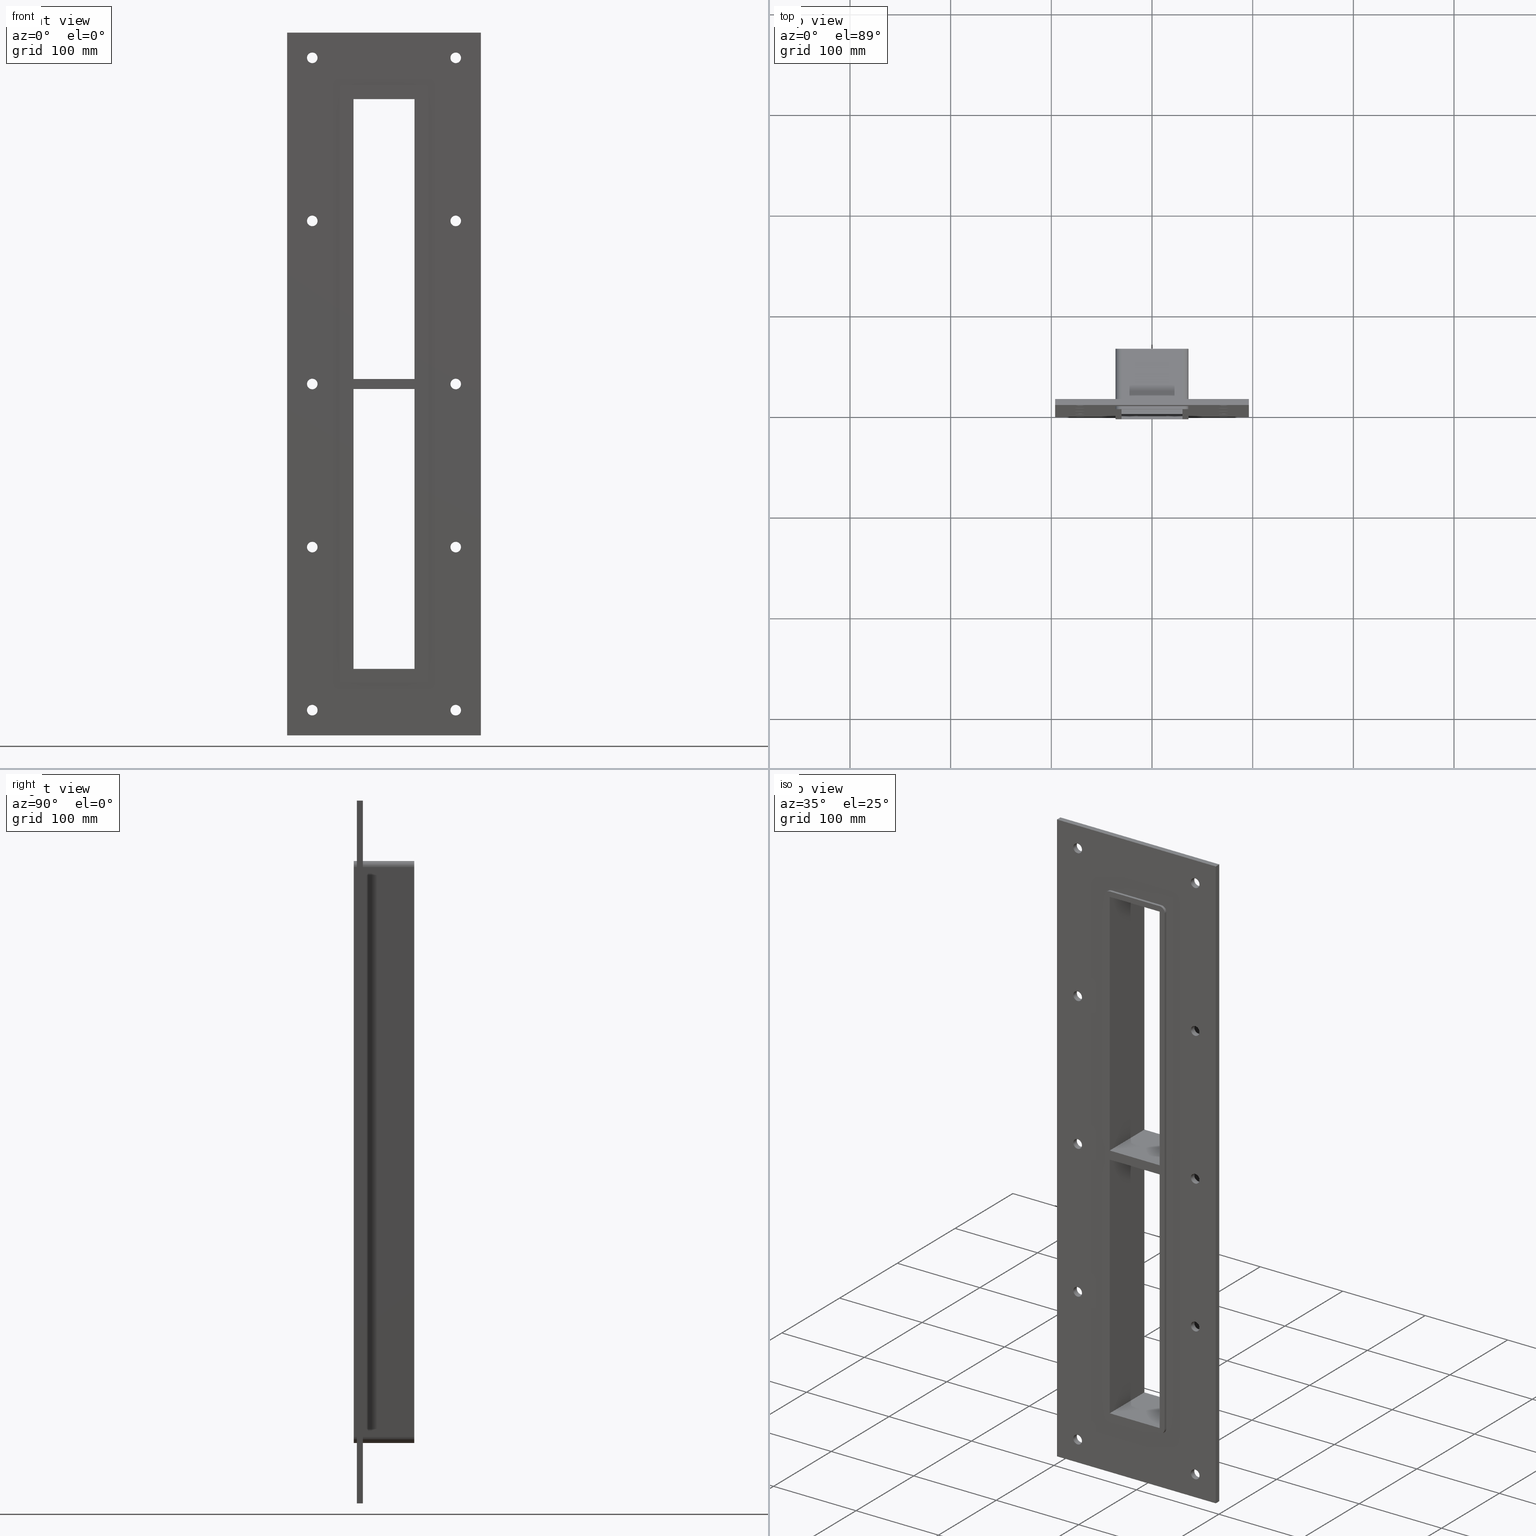
[diagram: canonical four-view strip — front | top / right | iso, engineering-drawing reading convention]
A machine part, canonical four-view strip (front | top / right | iso — engineering-drawing reading convention). The complete STEP part file that produces these views, byte-faithful:
ISO-10303-21;
HEADER;
/****************************************************************
 * Generated by software with PDElib inside                    *
 * PDElib Version v51a, created Wed 11/30/2011                  *
 * ITI Transcendata (http://www.transcendata.com/)              *
 ****************************************************************/
FILE_DESCRIPTION((''),'2;1');
FILE_NAME('L:\\roxtec-se\\Projects\\Ongoing_Projects\\12403 Transit Designer\\Product-data\\Product Data\\Reviwed & Approved\\Review\\GH\\STEP\\GH7+7X1.stp','2015-02-20T11:39:21',('se-emikul'),(''),'Autodesk Inventor 2013','Autodesk Inventor 2013','');
FILE_SCHEMA(('AUTOMOTIVE_DESIGN { 1 0 10303 214 1 1 1 1 }'));
ENDSEC;
DATA;
#5=APPLICATION_CONTEXT('automotive design');
#6=APPLICATION_PROTOCOL_DEFINITION('International Standard','automotive_design',2001,#5);
#7=PRODUCT_CONTEXT('',#5,'mechanical');
#8=PRODUCT('GH7+7X1','GH7+7X1',$,(#7));
#9=PRODUCT_RELATED_PRODUCT_CATEGORY('part',$,(#8));
#10=PRODUCT_DEFINITION_FORMATION('',$,#8);
#11=PRODUCT_DEFINITION_CONTEXT('part definition',#5,'design');
#12=PRODUCT_DEFINITION('',$,#10,#11);
#18=(NAMED_UNIT(*)PLANE_ANGLE_UNIT()SI_UNIT($,.RADIAN.));
#19=DIMENSIONAL_EXPONENTS(0.0,0.0,0.0,0.0,0.0,0.0,0.0);
#20=PLANE_ANGLE_MEASURE_WITH_UNIT(PLANE_ANGLE_MEASURE(0.0174532925),#18);
#24=(CONVERSION_BASED_UNIT('DEGREE',#20)NAMED_UNIT(#19)PLANE_ANGLE_UNIT());
#28=(NAMED_UNIT(*)SI_UNIT($,.STERADIAN.)SOLID_ANGLE_UNIT());
#32=(LENGTH_UNIT()NAMED_UNIT(*)SI_UNIT(.MILLI.,.METRE.));
#34=UNCERTAINTY_MEASURE_WITH_UNIT(LENGTH_MEASURE(0.01),#32,'DISTANCE_ACCURACY_VALUE','');
#36=(GEOMETRIC_REPRESENTATION_CONTEXT(3)GLOBAL_UNCERTAINTY_ASSIGNED_CONTEXT((#34))GLOBAL_UNIT_ASSIGNED_CONTEXT((#24,#28,#32))REPRESENTATION_CONTEXT('None','None'));
#37=AXIS2_PLACEMENT_3D('',#38,#39,#40);
#38=CARTESIAN_POINT('',(0.0,0.0,0.0));
#39=DIRECTION('',(0.0,0.0,1.0));
#40=DIRECTION('',(1.0,0.0,0.0));
#41=SHAPE_REPRESENTATION('',(#37),#36);
#42=PRODUCT_DEFINITION_SHAPE('','',#12);
#43=SHAPE_DEFINITION_REPRESENTATION(#42,#41);
#49=(NAMED_UNIT(*)PLANE_ANGLE_UNIT()SI_UNIT($,.RADIAN.));
#50=DIMENSIONAL_EXPONENTS(0.0,0.0,0.0,0.0,0.0,0.0,0.0);
#51=PLANE_ANGLE_MEASURE_WITH_UNIT(PLANE_ANGLE_MEASURE(0.0174532925),#49);
#55=(CONVERSION_BASED_UNIT('DEGREE',#51)NAMED_UNIT(#50)PLANE_ANGLE_UNIT());
#59=(NAMED_UNIT(*)SI_UNIT($,.STERADIAN.)SOLID_ANGLE_UNIT());
#63=(LENGTH_UNIT()NAMED_UNIT(*)SI_UNIT(.MILLI.,.METRE.));
#65=UNCERTAINTY_MEASURE_WITH_UNIT(LENGTH_MEASURE(0.000001),#63,'DISTANCE_ACCURACY_VALUE','');
#67=(GEOMETRIC_REPRESENTATION_CONTEXT(3)GLOBAL_UNCERTAINTY_ASSIGNED_CONTEXT((#65))GLOBAL_UNIT_ASSIGNED_CONTEXT((#55,#59,#63))REPRESENTATION_CONTEXT('','3D'));
#68=CARTESIAN_POINT('',(-71.250000000000114,726.53991631568306,-323.99999999999989));
#69=DIRECTION('',(0.0,-1.0,0.0));
#70=DIRECTION('',(1.0,0.0,0.0));
#71=AXIS2_PLACEMENT_3D('',#68,#69,#70);
#72=CYLINDRICAL_SURFACE('',#71,5.25);
#73=CARTESIAN_POINT('',(-76.500000000000114,5.999999999999943,-323.99999999999989));
#74=VERTEX_POINT('',#73);
#75=CARTESIAN_POINT('',(-71.250000000000114,5.999999999999943,-323.99999999999989));
#76=DIRECTION('',(0.0,-1.0,0.0));
#77=DIRECTION('',(1.0,0.0,0.0));
#78=AXIS2_PLACEMENT_3D('',#75,#76,#77);
#79=CIRCLE('',#78,5.25);
#80=EDGE_CURVE('',#74,#74,#79,.T.);
#81=ORIENTED_EDGE('',*,*,#80,.F.);
#82=EDGE_LOOP('',(#81));
#83=FACE_OUTER_BOUND('',#82,.T.);
#84=CARTESIAN_POINT('',(-66.000000000000099,0.0,-323.99999999999989));
#85=VERTEX_POINT('',#84);
#86=CARTESIAN_POINT('',(-71.250000000000114,0.0,-323.99999999999989));
#87=DIRECTION('',(0.0,1.0,0.0));
#88=DIRECTION('',(1.0,0.0,0.0));
#89=AXIS2_PLACEMENT_3D('',#86,#87,#88);
#90=CIRCLE('',#89,5.25);
#91=EDGE_CURVE('',#85,#85,#90,.T.);
#92=ORIENTED_EDGE('',*,*,#91,.F.);
#93=EDGE_LOOP('',(#92));
#94=FACE_BOUND('',#93,.T.);
#95=ADVANCED_FACE('',(#83,#94),#72,.F.);
#96=CARTESIAN_POINT('',(71.249999999999886,726.53991631568306,-161.99999999999986));
#97=DIRECTION('',(0.0,-1.0,0.0));
#98=DIRECTION('',(1.0,0.0,0.0));
#99=AXIS2_PLACEMENT_3D('',#96,#97,#98);
#100=CYLINDRICAL_SURFACE('',#99,5.25);
#101=CARTESIAN_POINT('',(65.999999999999886,5.999999999999943,-161.99999999999986));
#102=VERTEX_POINT('',#101);
#103=CARTESIAN_POINT('',(71.249999999999886,5.999999999999943,-161.99999999999986));
#104=DIRECTION('',(0.0,-1.0,0.0));
#105=DIRECTION('',(1.0,0.0,0.0));
#106=AXIS2_PLACEMENT_3D('',#103,#104,#105);
#107=CIRCLE('',#106,5.25);
#108=EDGE_CURVE('',#102,#102,#107,.T.);
#109=ORIENTED_EDGE('',*,*,#108,.F.);
#110=EDGE_LOOP('',(#109));
#111=FACE_OUTER_BOUND('',#110,.T.);
#112=CARTESIAN_POINT('',(76.499999999999901,0.0,-161.99999999999986));
#113=VERTEX_POINT('',#112);
#114=CARTESIAN_POINT('',(71.249999999999886,0.0,-161.99999999999986));
#115=DIRECTION('',(0.0,1.0,0.0));
#116=DIRECTION('',(1.0,0.0,0.0));
#117=AXIS2_PLACEMENT_3D('',#114,#115,#116);
#118=CIRCLE('',#117,5.25);
#119=EDGE_CURVE('',#113,#113,#118,.T.);
#120=ORIENTED_EDGE('',*,*,#119,.F.);
#121=EDGE_LOOP('',(#120));
#122=FACE_BOUND('',#121,.T.);
#123=ADVANCED_FACE('',(#111,#122),#100,.F.);
#124=CARTESIAN_POINT('',(-71.250000000000114,726.53991631568306,-161.99999999999986));
#125=DIRECTION('',(0.0,-1.0,0.0));
#126=DIRECTION('',(1.0,0.0,0.0));
#127=AXIS2_PLACEMENT_3D('',#124,#125,#126);
#128=CYLINDRICAL_SURFACE('',#127,5.25);
#129=CARTESIAN_POINT('',(-76.500000000000114,5.999999999999943,-161.99999999999986));
#130=VERTEX_POINT('',#129);
#131=CARTESIAN_POINT('',(-71.250000000000114,5.999999999999943,-161.99999999999986));
#132=DIRECTION('',(0.0,-1.0,0.0));
#133=DIRECTION('',(1.0,0.0,0.0));
#134=AXIS2_PLACEMENT_3D('',#131,#132,#133);
#135=CIRCLE('',#134,5.25);
#136=EDGE_CURVE('',#130,#130,#135,.T.);
#137=ORIENTED_EDGE('',*,*,#136,.F.);
#138=EDGE_LOOP('',(#137));
#139=FACE_OUTER_BOUND('',#138,.T.);
#140=CARTESIAN_POINT('',(-66.000000000000099,0.0,-161.99999999999986));
#141=VERTEX_POINT('',#140);
#142=CARTESIAN_POINT('',(-71.250000000000114,0.0,-161.99999999999986));
#143=DIRECTION('',(0.0,1.0,0.0));
#144=DIRECTION('',(1.0,0.0,0.0));
#145=AXIS2_PLACEMENT_3D('',#142,#143,#144);
#146=CIRCLE('',#145,5.25);
#147=EDGE_CURVE('',#141,#141,#146,.T.);
#148=ORIENTED_EDGE('',*,*,#147,.F.);
#149=EDGE_LOOP('',(#148));
#150=FACE_BOUND('',#149,.T.);
#151=ADVANCED_FACE('',(#139,#150),#128,.F.);
#152=CARTESIAN_POINT('',(71.249999999999886,726.53991631568306,7.105427E-014));
#153=DIRECTION('',(0.0,-1.0,0.0));
#154=DIRECTION('',(1.0,0.0,0.0));
#155=AXIS2_PLACEMENT_3D('',#152,#153,#154);
#156=CYLINDRICAL_SURFACE('',#155,5.25);
#157=CARTESIAN_POINT('',(65.999999999999886,5.999999999999943,7.105427E-014));
#158=VERTEX_POINT('',#157);
#159=CARTESIAN_POINT('',(71.249999999999886,5.999999999999943,7.105427E-014));
#160=DIRECTION('',(0.0,-1.0,0.0));
#161=DIRECTION('',(1.0,0.0,0.0));
#162=AXIS2_PLACEMENT_3D('',#159,#160,#161);
#163=CIRCLE('',#162,5.25);
#164=EDGE_CURVE('',#158,#158,#163,.T.);
#165=ORIENTED_EDGE('',*,*,#164,.F.);
#166=EDGE_LOOP('',(#165));
#167=FACE_OUTER_BOUND('',#166,.T.);
#168=CARTESIAN_POINT('',(76.499999999999901,0.0,7.105427E-014));
#169=VERTEX_POINT('',#168);
#170=CARTESIAN_POINT('',(71.249999999999886,0.0,7.105427E-014));
#171=DIRECTION('',(0.0,1.0,0.0));
#172=DIRECTION('',(1.0,0.0,0.0));
#173=AXIS2_PLACEMENT_3D('',#170,#171,#172);
#174=CIRCLE('',#173,5.25);
#175=EDGE_CURVE('',#169,#169,#174,.T.);
#176=ORIENTED_EDGE('',*,*,#175,.F.);
#177=EDGE_LOOP('',(#176));
#178=FACE_BOUND('',#177,.T.);
#179=ADVANCED_FACE('',(#167,#178),#156,.F.);
#180=CARTESIAN_POINT('',(-71.250000000000114,726.53991631568306,7.105427E-014));
#181=DIRECTION('',(0.0,-1.0,0.0));
#182=DIRECTION('',(1.0,0.0,0.0));
#183=AXIS2_PLACEMENT_3D('',#180,#181,#182);
#184=CYLINDRICAL_SURFACE('',#183,5.25);
#185=CARTESIAN_POINT('',(-76.500000000000114,5.999999999999943,7.105427E-014));
#186=VERTEX_POINT('',#185);
#187=CARTESIAN_POINT('',(-71.250000000000114,5.999999999999943,7.105427E-014));
#188=DIRECTION('',(0.0,-1.0,0.0));
#189=DIRECTION('',(1.0,0.0,0.0));
#190=AXIS2_PLACEMENT_3D('',#187,#188,#189);
#191=CIRCLE('',#190,5.25);
#192=EDGE_CURVE('',#186,#186,#191,.T.);
#193=ORIENTED_EDGE('',*,*,#192,.F.);
#194=EDGE_LOOP('',(#193));
#195=FACE_OUTER_BOUND('',#194,.T.);
#196=CARTESIAN_POINT('',(-66.000000000000099,0.0,7.105427E-014));
#197=VERTEX_POINT('',#196);
#198=CARTESIAN_POINT('',(-71.250000000000114,0.0,7.105427E-014));
#199=DIRECTION('',(0.0,1.0,0.0));
#200=DIRECTION('',(1.0,0.0,0.0));
#201=AXIS2_PLACEMENT_3D('',#198,#199,#200);
#202=CIRCLE('',#201,5.25);
#203=EDGE_CURVE('',#197,#197,#202,.T.);
#204=ORIENTED_EDGE('',*,*,#203,.F.);
#205=EDGE_LOOP('',(#204));
#206=FACE_BOUND('',#205,.T.);
#207=ADVANCED_FACE('',(#195,#206),#184,.F.);
#208=CARTESIAN_POINT('',(71.249999999999886,726.53991631568306,162.00000000000006));
#209=DIRECTION('',(0.0,-1.0,0.0));
#210=DIRECTION('',(1.0,0.0,0.0));
#211=AXIS2_PLACEMENT_3D('',#208,#209,#210);
#212=CYLINDRICAL_SURFACE('',#211,5.25);
#213=CARTESIAN_POINT('',(65.999999999999886,5.999999999999943,162.00000000000006));
#214=VERTEX_POINT('',#213);
#215=CARTESIAN_POINT('',(71.249999999999886,5.999999999999943,162.00000000000006));
#216=DIRECTION('',(0.0,-1.0,0.0));
#217=DIRECTION('',(1.0,0.0,0.0));
#218=AXIS2_PLACEMENT_3D('',#215,#216,#217);
#219=CIRCLE('',#218,5.25);
#220=EDGE_CURVE('',#214,#214,#219,.T.);
#221=ORIENTED_EDGE('',*,*,#220,.F.);
#222=EDGE_LOOP('',(#221));
#223=FACE_OUTER_BOUND('',#222,.T.);
#224=CARTESIAN_POINT('',(76.499999999999901,0.0,162.00000000000006));
#225=VERTEX_POINT('',#224);
#226=CARTESIAN_POINT('',(71.249999999999886,0.0,162.00000000000006));
#227=DIRECTION('',(0.0,1.0,0.0));
#228=DIRECTION('',(1.0,0.0,0.0));
#229=AXIS2_PLACEMENT_3D('',#226,#227,#228);
#230=CIRCLE('',#229,5.25);
#231=EDGE_CURVE('',#225,#225,#230,.T.);
#232=ORIENTED_EDGE('',*,*,#231,.F.);
#233=EDGE_LOOP('',(#232));
#234=FACE_BOUND('',#233,.T.);
#235=ADVANCED_FACE('',(#223,#234),#212,.F.);
#236=CARTESIAN_POINT('',(-71.250000000000114,726.53991631568306,162.00000000000006));
#237=DIRECTION('',(0.0,-1.0,0.0));
#238=DIRECTION('',(1.0,0.0,0.0));
#239=AXIS2_PLACEMENT_3D('',#236,#237,#238);
#240=CYLINDRICAL_SURFACE('',#239,5.25);
#241=CARTESIAN_POINT('',(-76.500000000000114,5.999999999999943,162.00000000000006));
#242=VERTEX_POINT('',#241);
#243=CARTESIAN_POINT('',(-71.250000000000114,5.999999999999943,162.00000000000006));
#244=DIRECTION('',(0.0,-1.0,0.0));
#245=DIRECTION('',(1.0,0.0,0.0));
#246=AXIS2_PLACEMENT_3D('',#243,#244,#245);
#247=CIRCLE('',#246,5.25);
#248=EDGE_CURVE('',#242,#242,#247,.T.);
#249=ORIENTED_EDGE('',*,*,#248,.F.);
#250=EDGE_LOOP('',(#249));
#251=FACE_OUTER_BOUND('',#250,.T.);
#252=CARTESIAN_POINT('',(-66.000000000000099,0.0,162.00000000000006));
#253=VERTEX_POINT('',#252);
#254=CARTESIAN_POINT('',(-71.250000000000114,0.0,162.00000000000006));
#255=DIRECTION('',(0.0,1.0,0.0));
#256=DIRECTION('',(1.0,0.0,0.0));
#257=AXIS2_PLACEMENT_3D('',#254,#255,#256);
#258=CIRCLE('',#257,5.25);
#259=EDGE_CURVE('',#253,#253,#258,.T.);
#260=ORIENTED_EDGE('',*,*,#259,.F.);
#261=EDGE_LOOP('',(#260));
#262=FACE_BOUND('',#261,.T.);
#263=ADVANCED_FACE('',(#251,#262),#240,.F.);
#264=CARTESIAN_POINT('',(71.249999999999886,726.53991631568306,-323.99999999999989));
#265=DIRECTION('',(0.0,-1.0,0.0));
#266=DIRECTION('',(1.0,0.0,0.0));
#267=AXIS2_PLACEMENT_3D('',#264,#265,#266);
#268=CYLINDRICAL_SURFACE('',#267,5.25);
#269=CARTESIAN_POINT('',(65.999999999999886,5.999999999999943,-323.99999999999989));
#270=VERTEX_POINT('',#269);
#271=CARTESIAN_POINT('',(71.249999999999886,5.999999999999943,-323.99999999999989));
#272=DIRECTION('',(0.0,-1.0,0.0));
#273=DIRECTION('',(1.0,0.0,0.0));
#274=AXIS2_PLACEMENT_3D('',#271,#272,#273);
#275=CIRCLE('',#274,5.25);
#276=EDGE_CURVE('',#270,#270,#275,.T.);
#277=ORIENTED_EDGE('',*,*,#276,.F.);
#278=EDGE_LOOP('',(#277));
#279=FACE_OUTER_BOUND('',#278,.T.);
#280=CARTESIAN_POINT('',(76.499999999999901,0.0,-323.99999999999989));
#281=VERTEX_POINT('',#280);
#282=CARTESIAN_POINT('',(71.249999999999886,0.0,-323.99999999999989));
#283=DIRECTION('',(0.0,1.0,0.0));
#284=DIRECTION('',(1.0,0.0,0.0));
#285=AXIS2_PLACEMENT_3D('',#282,#283,#284);
#286=CIRCLE('',#285,5.25);
#287=EDGE_CURVE('',#281,#281,#286,.T.);
#288=ORIENTED_EDGE('',*,*,#287,.F.);
#289=EDGE_LOOP('',(#288));
#290=FACE_BOUND('',#289,.T.);
#291=ADVANCED_FACE('',(#279,#290),#268,.F.);
#292=CARTESIAN_POINT('',(-71.250000000000114,726.53991631568306,324.00000000000006));
#293=DIRECTION('',(0.0,-1.0,0.0));
#294=DIRECTION('',(1.0,0.0,0.0));
#295=AXIS2_PLACEMENT_3D('',#292,#293,#294);
#296=CYLINDRICAL_SURFACE('',#295,5.25);
#297=CARTESIAN_POINT('',(-76.500000000000114,5.999999999999943,324.00000000000006));
#298=VERTEX_POINT('',#297);
#299=CARTESIAN_POINT('',(-71.250000000000114,5.999999999999943,324.00000000000006));
#300=DIRECTION('',(0.0,-1.0,0.0));
#301=DIRECTION('',(1.0,0.0,0.0));
#302=AXIS2_PLACEMENT_3D('',#299,#300,#301);
#303=CIRCLE('',#302,5.25);
#304=EDGE_CURVE('',#298,#298,#303,.T.);
#305=ORIENTED_EDGE('',*,*,#304,.F.);
#306=EDGE_LOOP('',(#305));
#307=FACE_OUTER_BOUND('',#306,.T.);
#308=CARTESIAN_POINT('',(-66.000000000000099,0.0,324.00000000000006));
#309=VERTEX_POINT('',#308);
#310=CARTESIAN_POINT('',(-71.250000000000114,0.0,324.00000000000006));
#311=DIRECTION('',(0.0,1.0,0.0));
#312=DIRECTION('',(1.0,0.0,0.0));
#313=AXIS2_PLACEMENT_3D('',#310,#311,#312);
#314=CIRCLE('',#313,5.25);
#315=EDGE_CURVE('',#309,#309,#314,.T.);
#316=ORIENTED_EDGE('',*,*,#315,.F.);
#317=EDGE_LOOP('',(#316));
#318=FACE_BOUND('',#317,.T.);
#319=ADVANCED_FACE('',(#307,#318),#296,.F.);
#320=CARTESIAN_POINT('',(71.249999999999886,726.53991631568306,324.00000000000006));
#321=DIRECTION('',(0.0,-1.0,0.0));
#322=DIRECTION('',(1.0,0.0,0.0));
#323=AXIS2_PLACEMENT_3D('',#320,#321,#322);
#324=CYLINDRICAL_SURFACE('',#323,5.25);
#325=CARTESIAN_POINT('',(65.999999999999886,5.999999999999943,324.00000000000006));
#326=VERTEX_POINT('',#325);
#327=CARTESIAN_POINT('',(71.249999999999886,5.999999999999943,324.00000000000006));
#328=DIRECTION('',(0.0,-1.0,0.0));
#329=DIRECTION('',(1.0,0.0,0.0));
#330=AXIS2_PLACEMENT_3D('',#327,#328,#329);
#331=CIRCLE('',#330,5.25);
#332=EDGE_CURVE('',#326,#326,#331,.T.);
#333=ORIENTED_EDGE('',*,*,#332,.F.);
#334=EDGE_LOOP('',(#333));
#335=FACE_OUTER_BOUND('',#334,.T.);
#336=CARTESIAN_POINT('',(76.499999999999901,0.0,324.00000000000006));
#337=VERTEX_POINT('',#336);
#338=CARTESIAN_POINT('',(71.249999999999886,0.0,324.00000000000006));
#339=DIRECTION('',(0.0,1.0,0.0));
#340=DIRECTION('',(1.0,0.0,0.0));
#341=AXIS2_PLACEMENT_3D('',#338,#339,#340);
#342=CIRCLE('',#341,5.25);
#343=EDGE_CURVE('',#337,#337,#342,.T.);
#344=ORIENTED_EDGE('',*,*,#343,.F.);
#345=EDGE_LOOP('',(#344));
#346=FACE_BOUND('',#345,.T.);
#347=ADVANCED_FACE('',(#335,#346),#324,.F.);
#348=CARTESIAN_POINT('',(30.249999999996362,-3.0,-5.000000000010795));
#349=DIRECTION('',(0.0,0.0,-1.0));
#350=DIRECTION('',(-1.0,0.0,0.0));
#351=AXIS2_PLACEMENT_3D('',#348,#349,#350);
#352=PLANE('',#351);
#353=CARTESIAN_POINT('',(30.249999999996362,-3.0,-5.000000000010795));
#354=VERTEX_POINT('',#353);
#355=CARTESIAN_POINT('',(-30.249999999997087,-3.0,-5.000000000011369));
#356=VERTEX_POINT('',#355);
#357=CARTESIAN_POINT('',(30.249999999996362,-3.0,-5.000000000010795));
#358=DIRECTION('',(-1.0,0.0,0.0));
#359=VECTOR('',#358,60.499999999993449);
#360=LINE('',#357,#359);
#361=EDGE_CURVE('',#354,#356,#360,.T.);
#362=ORIENTED_EDGE('',*,*,#361,.T.);
#363=CARTESIAN_POINT('',(-30.249999999997087,57.0,-5.000000000011369));
#364=VERTEX_POINT('',#363);
#365=CARTESIAN_POINT('',(-30.249999999999986,57.000000000000007,-5.000000000011372));
#366=DIRECTION('',(0.0,-1.0,0.0));
#367=VECTOR('',#366,60.000000000000007);
#368=LINE('',#365,#367);
#369=EDGE_CURVE('',#364,#356,#368,.T.);
#370=ORIENTED_EDGE('',*,*,#369,.F.);
#371=CARTESIAN_POINT('',(30.249999999996362,57.0,-5.000000000010796));
#372=VERTEX_POINT('',#371);
#373=CARTESIAN_POINT('',(30.249999999996362,57.0,-5.000000000010795));
#374=DIRECTION('',(-1.0,0.0,0.0));
#375=VECTOR('',#374,60.499999999993449);
#376=LINE('',#373,#375);
#377=EDGE_CURVE('',#372,#364,#376,.T.);
#378=ORIENTED_EDGE('',*,*,#377,.F.);
#379=CARTESIAN_POINT('',(30.249999999999986,-3.0,-5.0000000000108));
#380=DIRECTION('',(0.0,1.0,0.0));
#381=VECTOR('',#380,60.000000000000007);
#382=LINE('',#379,#381);
#383=EDGE_CURVE('',#354,#372,#382,.T.);
#384=ORIENTED_EDGE('',*,*,#383,.F.);
#385=EDGE_LOOP('',(#362,#370,#378,#384));
#386=FACE_OUTER_BOUND('',#385,.T.);
#387=ADVANCED_FACE('',(#386),#352,.T.);
#388=CARTESIAN_POINT('',(-30.24999999999709,-3.0,5.0));
#389=DIRECTION('',(0.0,0.0,1.0));
#390=DIRECTION('',(1.0,0.0,0.0));
#391=AXIS2_PLACEMENT_3D('',#388,#389,#390);
#392=PLANE('',#391);
#393=CARTESIAN_POINT('',(-30.24999999999709,-3.0,5.0));
#394=VERTEX_POINT('',#393);
#395=CARTESIAN_POINT('',(30.249999999999019,-3.0,5.0));
#396=VERTEX_POINT('',#395);
#397=CARTESIAN_POINT('',(-30.24999999999709,-3.0,5.0));
#398=DIRECTION('',(1.0,0.0,0.0));
#399=VECTOR('',#398,60.499999999996106);
#400=LINE('',#397,#399);
#401=EDGE_CURVE('',#394,#396,#400,.T.);
#402=ORIENTED_EDGE('',*,*,#401,.T.);
#403=CARTESIAN_POINT('',(30.249999999999019,57.0,5.0));
#404=VERTEX_POINT('',#403);
#405=CARTESIAN_POINT('',(30.249999999999986,57.000000000000007,5.0));
#406=DIRECTION('',(0.0,-1.0,0.0));
#407=VECTOR('',#406,60.000000000000007);
#408=LINE('',#405,#407);
#409=EDGE_CURVE('',#404,#396,#408,.T.);
#410=ORIENTED_EDGE('',*,*,#409,.F.);
#411=CARTESIAN_POINT('',(-30.24999999999709,57.0,5.0));
#412=VERTEX_POINT('',#411);
#413=CARTESIAN_POINT('',(-30.24999999999709,57.0,5.0));
#414=DIRECTION('',(1.0,0.0,0.0));
#415=VECTOR('',#414,60.499999999996106);
#416=LINE('',#413,#415);
#417=EDGE_CURVE('',#412,#404,#416,.T.);
#418=ORIENTED_EDGE('',*,*,#417,.F.);
#419=CARTESIAN_POINT('',(-30.249999999999986,-3.0,5.0));
#420=DIRECTION('',(0.0,1.0,0.0));
#421=VECTOR('',#420,60.000000000000007);
#422=LINE('',#419,#421);
#423=EDGE_CURVE('',#394,#412,#422,.T.);
#424=ORIENTED_EDGE('',*,*,#423,.F.);
#425=EDGE_LOOP('',(#402,#410,#418,#424));
#426=FACE_OUTER_BOUND('',#425,.T.);
#427=ADVANCED_FACE('',(#426),#392,.T.);
#428=CARTESIAN_POINT('',(-30.249999999999986,0.0,-283.0));
#429=DIRECTION('',(-1.0,0.0,0.0));
#430=DIRECTION('',(0.0,0.0,1.0));
#431=AXIS2_PLACEMENT_3D('',#428,#429,#430);
#432=PLANE('',#431);
#433=ORIENTED_EDGE('',*,*,#423,.T.);
#434=CARTESIAN_POINT('',(-30.249999999999986,57.0,283.0));
#435=VERTEX_POINT('',#434);
#436=CARTESIAN_POINT('',(-30.249999999999986,57.0,282.99999999999994));
#437=DIRECTION('',(0.0,0.0,-1.0));
#438=VECTOR('',#437,277.99999999999994);
#439=LINE('',#436,#438);
#440=EDGE_CURVE('',#435,#412,#439,.T.);
#441=ORIENTED_EDGE('',*,*,#440,.F.);
#442=CARTESIAN_POINT('',(-30.249999999999986,-3.0,283.0));
#443=VERTEX_POINT('',#442);
#444=CARTESIAN_POINT('',(-30.249999999999986,-3.0,283.0));
#445=DIRECTION('',(0.0,1.0,0.0));
#446=VECTOR('',#445,60.0);
#447=LINE('',#444,#446);
#448=EDGE_CURVE('',#443,#435,#447,.T.);
#449=ORIENTED_EDGE('',*,*,#448,.F.);
#450=CARTESIAN_POINT('',(-30.249999999999986,-3.0,5.0));
#451=DIRECTION('',(0.0,0.0,1.0));
#452=VECTOR('',#451,277.99999999999994);
#453=LINE('',#450,#452);
#454=EDGE_CURVE('',#394,#443,#453,.T.);
#455=ORIENTED_EDGE('',*,*,#454,.F.);
#456=EDGE_LOOP('',(#433,#441,#449,#455));
#457=FACE_OUTER_BOUND('',#456,.T.);
#458=ADVANCED_FACE('',(#457),#432,.F.);
#459=CARTESIAN_POINT('',(30.249999999999986,0.0,283.0));
#460=DIRECTION('',(1.0,0.0,0.0));
#461=DIRECTION('',(0.0,0.0,-1.0));
#462=AXIS2_PLACEMENT_3D('',#459,#460,#461);
#463=PLANE('',#462);
#464=ORIENTED_EDGE('',*,*,#383,.T.);
#465=CARTESIAN_POINT('',(30.249999999999986,57.0,-283.0));
#466=VERTEX_POINT('',#465);
#467=CARTESIAN_POINT('',(30.249999999999986,57.0,-283.0));
#468=DIRECTION('',(0.0,0.0,1.0));
#469=VECTOR('',#468,277.9999999999892);
#470=LINE('',#467,#469);
#471=EDGE_CURVE('',#466,#372,#470,.T.);
#472=ORIENTED_EDGE('',*,*,#471,.F.);
#473=CARTESIAN_POINT('',(30.249999999999986,-3.0,-283.0));
#474=VERTEX_POINT('',#473);
#475=CARTESIAN_POINT('',(30.249999999999986,56.999999999999993,-283.0));
#476=DIRECTION('',(0.0,-1.0,0.0));
#477=VECTOR('',#476,59.999999999999993);
#478=LINE('',#475,#477);
#479=EDGE_CURVE('',#466,#474,#478,.T.);
#480=ORIENTED_EDGE('',*,*,#479,.T.);
#481=CARTESIAN_POINT('',(30.249999999999986,-3.0,-5.0000000000108));
#482=DIRECTION('',(0.0,0.0,-1.0));
#483=VECTOR('',#482,277.9999999999892);
#484=LINE('',#481,#483);
#485=EDGE_CURVE('',#354,#474,#484,.T.);
#486=ORIENTED_EDGE('',*,*,#485,.F.);
#487=EDGE_LOOP('',(#464,#472,#480,#486));
#488=FACE_OUTER_BOUND('',#487,.T.);
#489=ADVANCED_FACE('',(#488),#463,.F.);
#490=CARTESIAN_POINT('',(30.249999999999986,0.0,283.0));
#491=DIRECTION('',(1.0,0.0,0.0));
#492=DIRECTION('',(0.0,0.0,-1.0));
#493=AXIS2_PLACEMENT_3D('',#490,#491,#492);
#494=PLANE('',#493);
#495=ORIENTED_EDGE('',*,*,#409,.T.);
#496=CARTESIAN_POINT('',(30.249999999999986,-3.0,283.0));
#497=VERTEX_POINT('',#496);
#498=CARTESIAN_POINT('',(30.249999999999986,-3.0,283.0));
#499=DIRECTION('',(0.0,0.0,-1.0));
#500=VECTOR('',#499,278.0);
#501=LINE('',#498,#500);
#502=EDGE_CURVE('',#497,#396,#501,.T.);
#503=ORIENTED_EDGE('',*,*,#502,.F.);
#504=CARTESIAN_POINT('',(30.249999999999986,57.0,283.0));
#505=VERTEX_POINT('',#504);
#506=CARTESIAN_POINT('',(30.249999999999986,-3.0,283.0));
#507=DIRECTION('',(0.0,1.0,0.0));
#508=VECTOR('',#507,60.0);
#509=LINE('',#506,#508);
#510=EDGE_CURVE('',#497,#505,#509,.T.);
#511=ORIENTED_EDGE('',*,*,#510,.T.);
#512=CARTESIAN_POINT('',(30.249999999999986,57.0,5.0));
#513=DIRECTION('',(0.0,0.0,1.0));
#514=VECTOR('',#513,278.0);
#515=LINE('',#512,#514);
#516=EDGE_CURVE('',#404,#505,#515,.T.);
#517=ORIENTED_EDGE('',*,*,#516,.F.);
#518=EDGE_LOOP('',(#495,#503,#511,#517));
#519=FACE_OUTER_BOUND('',#518,.T.);
#520=ADVANCED_FACE('',(#519),#494,.F.);
#521=CARTESIAN_POINT('',(-4.787486E-015,6.000000000000001,3.351240E-014));
#522=DIRECTION('',(0.0,1.0,0.0));
#523=DIRECTION('',(0.0,0.0,1.0));
#524=AXIS2_PLACEMENT_3D('',#521,#522,#523);
#525=PLANE('',#524);
#526=CARTESIAN_POINT('',(-96.25,6.000000000000001,349.0));
#527=VERTEX_POINT('',#526);
#528=CARTESIAN_POINT('',(96.25,6.000000000000001,349.0));
#529=VERTEX_POINT('',#528);
#530=CARTESIAN_POINT('',(-96.25,6.000000000000001,349.0));
#531=DIRECTION('',(1.0,0.0,0.0));
#532=VECTOR('',#531,192.5);
#533=LINE('',#530,#532);
#534=EDGE_CURVE('',#527,#529,#533,.T.);
#535=ORIENTED_EDGE('',*,*,#534,.T.);
#536=CARTESIAN_POINT('',(96.25,6.000000000000001,-348.99999999999983));
#537=VERTEX_POINT('',#536);
#538=CARTESIAN_POINT('',(96.249999999999986,6.000000000000001,349.0));
#539=DIRECTION('',(0.0,0.0,-1.0));
#540=VECTOR('',#539,697.99999999999977);
#541=LINE('',#538,#540);
#542=EDGE_CURVE('',#529,#537,#541,.T.);
#543=ORIENTED_EDGE('',*,*,#542,.T.);
#544=CARTESIAN_POINT('',(-96.25,6.000000000000001,-348.99999999999983));
#545=VERTEX_POINT('',#544);
#546=CARTESIAN_POINT('',(96.249999999999986,6.000000000000001,-348.99999999999989));
#547=DIRECTION('',(-1.0,0.0,0.0));
#548=VECTOR('',#547,192.5);
#549=LINE('',#546,#548);
#550=EDGE_CURVE('',#537,#545,#549,.T.);
#551=ORIENTED_EDGE('',*,*,#550,.T.);
#552=CARTESIAN_POINT('',(-96.25,6.000000000000001,-348.99999999999989));
#553=DIRECTION('',(0.0,0.0,1.0));
#554=VECTOR('',#553,697.99999999999977);
#555=LINE('',#552,#554);
#556=EDGE_CURVE('',#545,#527,#555,.T.);
#557=ORIENTED_EDGE('',*,*,#556,.T.);
#558=EDGE_LOOP('',(#535,#543,#551,#557));
#559=FACE_OUTER_BOUND('',#558,.T.);
#560=ORIENTED_EDGE('',*,*,#80,.T.);
#561=EDGE_LOOP('',(#560));
#562=FACE_BOUND('',#561,.T.);
#563=ORIENTED_EDGE('',*,*,#108,.T.);
#564=EDGE_LOOP('',(#563));
#565=FACE_BOUND('',#564,.T.);
#566=ORIENTED_EDGE('',*,*,#136,.T.);
#567=EDGE_LOOP('',(#566));
#568=FACE_BOUND('',#567,.T.);
#569=ORIENTED_EDGE('',*,*,#164,.T.);
#570=EDGE_LOOP('',(#569));
#571=FACE_BOUND('',#570,.T.);
#572=ORIENTED_EDGE('',*,*,#192,.T.);
#573=EDGE_LOOP('',(#572));
#574=FACE_BOUND('',#573,.T.);
#575=ORIENTED_EDGE('',*,*,#220,.T.);
#576=EDGE_LOOP('',(#575));
#577=FACE_BOUND('',#576,.T.);
#578=ORIENTED_EDGE('',*,*,#248,.T.);
#579=EDGE_LOOP('',(#578));
#580=FACE_BOUND('',#579,.T.);
#581=ORIENTED_EDGE('',*,*,#276,.T.);
#582=EDGE_LOOP('',(#581));
#583=FACE_BOUND('',#582,.T.);
#584=ORIENTED_EDGE('',*,*,#304,.T.);
#585=EDGE_LOOP('',(#584));
#586=FACE_BOUND('',#585,.T.);
#587=ORIENTED_EDGE('',*,*,#332,.T.);
#588=EDGE_LOOP('',(#587));
#589=FACE_BOUND('',#588,.T.);
#590=CARTESIAN_POINT('',(-36.25,6.000000000000001,283.0));
#591=VERTEX_POINT('',#590);
#592=CARTESIAN_POINT('',(-30.250000000000004,6.000000000000001,289.0));
#593=VERTEX_POINT('',#592);
#594=CARTESIAN_POINT('',(-30.250000000000004,6.000000000000001,283.0));
#595=DIRECTION('',(0.0,1.0,0.0));
#596=DIRECTION('',(-0.707106781186546,0.0,0.707106781186549));
#597=AXIS2_PLACEMENT_3D('',#594,#595,#596);
#598=CIRCLE('',#597,6.000000000000001);
#599=EDGE_CURVE('',#591,#593,#598,.T.);
#600=ORIENTED_EDGE('',*,*,#599,.F.);
#601=CARTESIAN_POINT('',(-36.25,6.000000000000001,-283.00000000000006));
#602=VERTEX_POINT('',#601);
#603=CARTESIAN_POINT('',(-36.25,6.000000000000001,-283.0));
#604=DIRECTION('',(0.0,0.0,1.0));
#605=VECTOR('',#604,566.0);
#606=LINE('',#603,#605);
#607=EDGE_CURVE('',#602,#591,#606,.T.);
#608=ORIENTED_EDGE('',*,*,#607,.F.);
#609=CARTESIAN_POINT('',(-30.250000000000004,6.000000000000001,-289.0));
#610=VERTEX_POINT('',#609);
#611=CARTESIAN_POINT('',(-30.250000000000004,6.000000000000001,-283.00000000000006));
#612=DIRECTION('',(0.0,1.0,0.0));
#613=DIRECTION('',(-0.707106781186551,0.0,-0.707106781186544));
#614=AXIS2_PLACEMENT_3D('',#611,#612,#613);
#615=CIRCLE('',#614,6.0);
#616=EDGE_CURVE('',#610,#602,#615,.T.);
#617=ORIENTED_EDGE('',*,*,#616,.F.);
#618=CARTESIAN_POINT('',(30.250000000000004,6.000000000000001,-289.0));
#619=VERTEX_POINT('',#618);
#620=CARTESIAN_POINT('',(30.25,6.000000000000001,-289.0));
#621=DIRECTION('',(-1.0,0.0,0.0));
#622=VECTOR('',#621,60.5);
#623=LINE('',#620,#622);
#624=EDGE_CURVE('',#619,#610,#623,.T.);
#625=ORIENTED_EDGE('',*,*,#624,.F.);
#626=CARTESIAN_POINT('',(36.25,6.000000000000001,-283.0));
#627=VERTEX_POINT('',#626);
#628=CARTESIAN_POINT('',(30.250000000000004,6.000000000000001,-283.0));
#629=DIRECTION('',(0.0,1.0,0.0));
#630=DIRECTION('',(0.707106781186546,0.0,-0.707106781186549));
#631=AXIS2_PLACEMENT_3D('',#628,#629,#630);
#632=CIRCLE('',#631,6.000000000000001);
#633=EDGE_CURVE('',#627,#619,#632,.T.);
#634=ORIENTED_EDGE('',*,*,#633,.F.);
#635=CARTESIAN_POINT('',(36.25,6.000000000000001,283.0));
#636=VERTEX_POINT('',#635);
#637=CARTESIAN_POINT('',(36.25,6.000000000000001,283.0));
#638=DIRECTION('',(0.0,0.0,-1.0));
#639=VECTOR('',#638,566.0);
#640=LINE('',#637,#639);
#641=EDGE_CURVE('',#636,#627,#640,.T.);
#642=ORIENTED_EDGE('',*,*,#641,.F.);
#643=CARTESIAN_POINT('',(30.250000000000004,6.000000000000001,289.0));
#644=VERTEX_POINT('',#643);
#645=CARTESIAN_POINT('',(30.250000000000004,6.000000000000001,283.0));
#646=DIRECTION('',(0.0,1.0,0.0));
#647=DIRECTION('',(0.707106781186546,0.0,0.707106781186549));
#648=AXIS2_PLACEMENT_3D('',#645,#646,#647);
#649=CIRCLE('',#648,6.000000000000001);
#650=EDGE_CURVE('',#644,#636,#649,.T.);
#651=ORIENTED_EDGE('',*,*,#650,.F.);
#652=CARTESIAN_POINT('',(-30.250000000000007,6.000000000000001,289.0));
#653=DIRECTION('',(1.0,0.0,0.0));
#654=VECTOR('',#653,60.5);
#655=LINE('',#652,#654);
#656=EDGE_CURVE('',#593,#644,#655,.T.);
#657=ORIENTED_EDGE('',*,*,#656,.F.);
#658=EDGE_LOOP('',(#600,#608,#617,#625,#634,#642,#651,#657));
#659=FACE_BOUND('',#658,.T.);
#660=ADVANCED_FACE('',(#559,#562,#565,#568,#571,#574,#577,#580,#583,#586,#589,#659),#525,.T.);
#661=CARTESIAN_POINT('',(-4.787486E-015,0.0,3.351240E-014));
#662=DIRECTION('',(0.0,1.0,0.0));
#663=DIRECTION('',(0.0,0.0,1.0));
#664=AXIS2_PLACEMENT_3D('',#661,#662,#663);
#665=PLANE('',#664);
#666=CARTESIAN_POINT('',(-96.25,0.0,349.0));
#667=VERTEX_POINT('',#666);
#668=CARTESIAN_POINT('',(96.249999999999986,0.0,349.0));
#669=VERTEX_POINT('',#668);
#670=CARTESIAN_POINT('',(-96.25,0.0,349.0));
#671=DIRECTION('',(1.0,0.0,0.0));
#672=VECTOR('',#671,192.5);
#673=LINE('',#670,#672);
#674=EDGE_CURVE('',#667,#669,#673,.T.);
#675=ORIENTED_EDGE('',*,*,#674,.F.);
#676=CARTESIAN_POINT('',(-96.25,0.0,-348.99999999999989));
#677=VERTEX_POINT('',#676);
#678=CARTESIAN_POINT('',(-96.25,0.0,-348.99999999999989));
#679=DIRECTION('',(0.0,0.0,1.0));
#680=VECTOR('',#679,697.99999999999977);
#681=LINE('',#678,#680);
#682=EDGE_CURVE('',#677,#667,#681,.T.);
#683=ORIENTED_EDGE('',*,*,#682,.F.);
#684=CARTESIAN_POINT('',(96.249999999999986,0.0,-348.99999999999989));
#685=VERTEX_POINT('',#684);
#686=CARTESIAN_POINT('',(96.249999999999986,0.0,-348.99999999999989));
#687=DIRECTION('',(-1.0,0.0,0.0));
#688=VECTOR('',#687,192.5);
#689=LINE('',#686,#688);
#690=EDGE_CURVE('',#685,#677,#689,.T.);
#691=ORIENTED_EDGE('',*,*,#690,.F.);
#692=CARTESIAN_POINT('',(96.249999999999986,0.0,349.0));
#693=DIRECTION('',(0.0,0.0,-1.0));
#694=VECTOR('',#693,697.99999999999977);
#695=LINE('',#692,#694);
#696=EDGE_CURVE('',#669,#685,#695,.T.);
#697=ORIENTED_EDGE('',*,*,#696,.F.);
#698=EDGE_LOOP('',(#675,#683,#691,#697));
#699=FACE_OUTER_BOUND('',#698,.T.);
#700=ORIENTED_EDGE('',*,*,#91,.T.);
#701=EDGE_LOOP('',(#700));
#702=FACE_BOUND('',#701,.T.);
#703=ORIENTED_EDGE('',*,*,#119,.T.);
#704=EDGE_LOOP('',(#703));
#705=FACE_BOUND('',#704,.T.);
#706=ORIENTED_EDGE('',*,*,#147,.T.);
#707=EDGE_LOOP('',(#706));
#708=FACE_BOUND('',#707,.T.);
#709=ORIENTED_EDGE('',*,*,#175,.T.);
#710=EDGE_LOOP('',(#709));
#711=FACE_BOUND('',#710,.T.);
#712=ORIENTED_EDGE('',*,*,#203,.T.);
#713=EDGE_LOOP('',(#712));
#714=FACE_BOUND('',#713,.T.);
#715=ORIENTED_EDGE('',*,*,#231,.T.);
#716=EDGE_LOOP('',(#715));
#717=FACE_BOUND('',#716,.T.);
#718=ORIENTED_EDGE('',*,*,#259,.T.);
#719=EDGE_LOOP('',(#718));
#720=FACE_BOUND('',#719,.T.);
#721=ORIENTED_EDGE('',*,*,#287,.T.);
#722=EDGE_LOOP('',(#721));
#723=FACE_BOUND('',#722,.T.);
#724=ORIENTED_EDGE('',*,*,#315,.T.);
#725=EDGE_LOOP('',(#724));
#726=FACE_BOUND('',#725,.T.);
#727=ORIENTED_EDGE('',*,*,#343,.T.);
#728=EDGE_LOOP('',(#727));
#729=FACE_BOUND('',#728,.T.);
#730=CARTESIAN_POINT('',(-30.250000000000004,0.0,289.0));
#731=VERTEX_POINT('',#730);
#732=CARTESIAN_POINT('',(-36.25,0.0,283.0));
#733=VERTEX_POINT('',#732);
#734=CARTESIAN_POINT('',(-30.250000000000004,0.0,283.0));
#735=DIRECTION('',(0.0,-1.0,0.0));
#736=DIRECTION('',(-0.707106781186546,0.0,0.707106781186549));
#737=AXIS2_PLACEMENT_3D('',#734,#735,#736);
#738=CIRCLE('',#737,6.000000000000001);
#739=EDGE_CURVE('',#731,#733,#738,.T.);
#740=ORIENTED_EDGE('',*,*,#739,.F.);
#741=CARTESIAN_POINT('',(30.250000000000004,0.0,289.0));
#742=VERTEX_POINT('',#741);
#743=CARTESIAN_POINT('',(30.249999999999996,0.0,289.0));
#744=DIRECTION('',(-1.0,0.0,0.0));
#745=VECTOR('',#744,60.5);
#746=LINE('',#743,#745);
#747=EDGE_CURVE('',#742,#731,#746,.T.);
#748=ORIENTED_EDGE('',*,*,#747,.F.);
#749=CARTESIAN_POINT('',(36.25,0.0,283.0));
#750=VERTEX_POINT('',#749);
#751=CARTESIAN_POINT('',(30.250000000000004,0.0,283.0));
#752=DIRECTION('',(0.0,-1.0,0.0));
#753=DIRECTION('',(0.707106781186546,0.0,0.707106781186549));
#754=AXIS2_PLACEMENT_3D('',#751,#752,#753);
#755=CIRCLE('',#754,6.000000000000001);
#756=EDGE_CURVE('',#750,#742,#755,.T.);
#757=ORIENTED_EDGE('',*,*,#756,.F.);
#758=CARTESIAN_POINT('',(36.25,0.0,-283.0));
#759=VERTEX_POINT('',#758);
#760=CARTESIAN_POINT('',(36.25,0.0,-283.0));
#761=DIRECTION('',(0.0,0.0,1.0));
#762=VECTOR('',#761,566.0);
#763=LINE('',#760,#762);
#764=EDGE_CURVE('',#759,#750,#763,.T.);
#765=ORIENTED_EDGE('',*,*,#764,.F.);
#766=CARTESIAN_POINT('',(30.250000000000004,0.0,-289.0));
#767=VERTEX_POINT('',#766);
#768=CARTESIAN_POINT('',(30.250000000000004,0.0,-283.0));
#769=DIRECTION('',(0.0,-1.0,0.0));
#770=DIRECTION('',(0.707106781186546,0.0,-0.707106781186549));
#771=AXIS2_PLACEMENT_3D('',#768,#769,#770);
#772=CIRCLE('',#771,6.000000000000001);
#773=EDGE_CURVE('',#767,#759,#772,.T.);
#774=ORIENTED_EDGE('',*,*,#773,.F.);
#775=CARTESIAN_POINT('',(-30.250000000000004,0.0,-289.0));
#776=VERTEX_POINT('',#775);
#777=CARTESIAN_POINT('',(-30.250000000000004,0.0,-289.0));
#778=DIRECTION('',(1.0,0.0,0.0));
#779=VECTOR('',#778,60.5);
#780=LINE('',#777,#779);
#781=EDGE_CURVE('',#776,#767,#780,.T.);
#782=ORIENTED_EDGE('',*,*,#781,.F.);
#783=CARTESIAN_POINT('',(-36.25,0.0,-283.00000000000006));
#784=VERTEX_POINT('',#783);
#785=CARTESIAN_POINT('',(-30.250000000000004,0.0,-283.00000000000006));
#786=DIRECTION('',(0.0,-1.0,0.0));
#787=DIRECTION('',(-0.707106781186551,0.0,-0.707106781186544));
#788=AXIS2_PLACEMENT_3D('',#785,#786,#787);
#789=CIRCLE('',#788,6.0);
#790=EDGE_CURVE('',#784,#776,#789,.T.);
#791=ORIENTED_EDGE('',*,*,#790,.F.);
#792=CARTESIAN_POINT('',(-36.25,0.0,283.0));
#793=DIRECTION('',(0.0,0.0,-1.0));
#794=VECTOR('',#793,566.0);
#795=LINE('',#792,#794);
#796=EDGE_CURVE('',#733,#784,#795,.T.);
#797=ORIENTED_EDGE('',*,*,#796,.F.);
#798=EDGE_LOOP('',(#740,#748,#757,#765,#774,#782,#791,#797));
#799=FACE_BOUND('',#798,.T.);
#800=ADVANCED_FACE('',(#699,#702,#705,#708,#711,#714,#717,#720,#723,#726,#729,#799),#665,.F.);
#801=CARTESIAN_POINT('',(-96.25,0.0,-348.99999999999989));
#802=DIRECTION('',(-1.0,0.0,0.0));
#803=DIRECTION('',(0.0,0.0,1.0));
#804=AXIS2_PLACEMENT_3D('',#801,#802,#803);
#805=PLANE('',#804);
#806=ORIENTED_EDGE('',*,*,#682,.T.);
#807=CARTESIAN_POINT('',(-96.25,0.0,349.0));
#808=DIRECTION('',(0.0,1.0,0.0));
#809=VECTOR('',#808,6.000000000000001);
#810=LINE('',#807,#809);
#811=EDGE_CURVE('',#667,#527,#810,.T.);
#812=ORIENTED_EDGE('',*,*,#811,.T.);
#813=ORIENTED_EDGE('',*,*,#556,.F.);
#814=CARTESIAN_POINT('',(-96.25,0.0,-348.99999999999989));
#815=DIRECTION('',(0.0,1.0,0.0));
#816=VECTOR('',#815,6.000000000000001);
#817=LINE('',#814,#816);
#818=EDGE_CURVE('',#677,#545,#817,.T.);
#819=ORIENTED_EDGE('',*,*,#818,.F.);
#820=EDGE_LOOP('',(#806,#812,#813,#819));
#821=FACE_OUTER_BOUND('',#820,.T.);
#822=ADVANCED_FACE('',(#821),#805,.T.);
#823=CARTESIAN_POINT('',(96.249999999999986,0.0,-348.99999999999989));
#824=DIRECTION('',(0.0,0.0,-1.0));
#825=DIRECTION('',(-1.0,0.0,0.0));
#826=AXIS2_PLACEMENT_3D('',#823,#824,#825);
#827=PLANE('',#826);
#828=ORIENTED_EDGE('',*,*,#690,.T.);
#829=ORIENTED_EDGE('',*,*,#818,.T.);
#830=ORIENTED_EDGE('',*,*,#550,.F.);
#831=CARTESIAN_POINT('',(96.249999999999986,0.0,-348.99999999999989));
#832=DIRECTION('',(0.0,1.0,0.0));
#833=VECTOR('',#832,6.000000000000001);
#834=LINE('',#831,#833);
#835=EDGE_CURVE('',#685,#537,#834,.T.);
#836=ORIENTED_EDGE('',*,*,#835,.F.);
#837=EDGE_LOOP('',(#828,#829,#830,#836));
#838=FACE_OUTER_BOUND('',#837,.T.);
#839=ADVANCED_FACE('',(#838),#827,.T.);
#840=CARTESIAN_POINT('',(96.249999999999986,0.0,349.0));
#841=DIRECTION('',(1.0,0.0,0.0));
#842=DIRECTION('',(0.0,0.0,-1.0));
#843=AXIS2_PLACEMENT_3D('',#840,#841,#842);
#844=PLANE('',#843);
#845=ORIENTED_EDGE('',*,*,#696,.T.);
#846=ORIENTED_EDGE('',*,*,#835,.T.);
#847=ORIENTED_EDGE('',*,*,#542,.F.);
#848=CARTESIAN_POINT('',(96.249999999999986,0.0,349.0));
#849=DIRECTION('',(0.0,1.0,0.0));
#850=VECTOR('',#849,6.000000000000001);
#851=LINE('',#848,#850);
#852=EDGE_CURVE('',#669,#529,#851,.T.);
#853=ORIENTED_EDGE('',*,*,#852,.F.);
#854=EDGE_LOOP('',(#845,#846,#847,#853));
#855=FACE_OUTER_BOUND('',#854,.T.);
#856=ADVANCED_FACE('',(#855),#844,.T.);
#857=CARTESIAN_POINT('',(-96.25,0.0,349.0));
#858=DIRECTION('',(0.0,0.0,1.0));
#859=DIRECTION('',(1.0,0.0,0.0));
#860=AXIS2_PLACEMENT_3D('',#857,#858,#859);
#861=PLANE('',#860);
#862=ORIENTED_EDGE('',*,*,#674,.T.);
#863=ORIENTED_EDGE('',*,*,#852,.T.);
#864=ORIENTED_EDGE('',*,*,#534,.F.);
#865=ORIENTED_EDGE('',*,*,#811,.F.);
#866=EDGE_LOOP('',(#862,#863,#864,#865));
#867=FACE_OUTER_BOUND('',#866,.T.);
#868=ADVANCED_FACE('',(#867),#861,.T.);
#869=CARTESIAN_POINT('',(-30.249999999999986,0.0,-283.0));
#870=DIRECTION('',(-1.0,0.0,0.0));
#871=DIRECTION('',(0.0,0.0,1.0));
#872=AXIS2_PLACEMENT_3D('',#869,#870,#871);
#873=PLANE('',#872);
#874=ORIENTED_EDGE('',*,*,#369,.T.);
#875=CARTESIAN_POINT('',(-30.249999999999986,-3.0,-283.0));
#876=VERTEX_POINT('',#875);
#877=CARTESIAN_POINT('',(-30.249999999999986,-3.0,-283.0));
#878=DIRECTION('',(0.0,0.0,1.0));
#879=VECTOR('',#878,277.99999999998863);
#880=LINE('',#877,#879);
#881=EDGE_CURVE('',#876,#356,#880,.T.);
#882=ORIENTED_EDGE('',*,*,#881,.F.);
#883=CARTESIAN_POINT('',(-30.249999999999986,57.0,-283.0));
#884=VERTEX_POINT('',#883);
#885=CARTESIAN_POINT('',(-30.249999999999986,-3.0,-283.0));
#886=DIRECTION('',(0.0,1.0,0.0));
#887=VECTOR('',#886,60.0);
#888=LINE('',#885,#887);
#889=EDGE_CURVE('',#876,#884,#888,.T.);
#890=ORIENTED_EDGE('',*,*,#889,.T.);
#891=CARTESIAN_POINT('',(-30.249999999999986,57.0,-5.000000000011369));
#892=DIRECTION('',(0.0,0.0,-1.0));
#893=VECTOR('',#892,277.99999999998863);
#894=LINE('',#891,#893);
#895=EDGE_CURVE('',#364,#884,#894,.T.);
#896=ORIENTED_EDGE('',*,*,#895,.F.);
#897=EDGE_LOOP('',(#874,#882,#890,#896));
#898=FACE_OUTER_BOUND('',#897,.T.);
#899=ADVANCED_FACE('',(#898),#873,.F.);
#900=CARTESIAN_POINT('',(30.250000000000004,0.0,-283.0));
#901=DIRECTION('',(0.0,1.0,0.0));
#902=DIRECTION('',(0.707106781186546,0.0,-0.707106781186549));
#903=AXIS2_PLACEMENT_3D('',#900,#901,#902);
#904=CYLINDRICAL_SURFACE('',#903,6.000000000000001);
#905=ORIENTED_EDGE('',*,*,#773,.T.);
#906=CARTESIAN_POINT('',(36.25,-3.0,-283.0));
#907=VERTEX_POINT('',#906);
#908=CARTESIAN_POINT('',(36.25,0.0,-283.0));
#909=DIRECTION('',(0.0,-1.0,0.0));
#910=VECTOR('',#909,3.0);
#911=LINE('',#908,#910);
#912=EDGE_CURVE('',#759,#907,#911,.T.);
#913=ORIENTED_EDGE('',*,*,#912,.T.);
#914=CARTESIAN_POINT('',(30.250000000000004,-3.0,-289.0));
#915=VERTEX_POINT('',#914);
#916=CARTESIAN_POINT('',(30.250000000000004,-3.0,-283.0));
#917=DIRECTION('',(0.0,1.0,0.0));
#918=DIRECTION('',(0.707106781186546,0.0,-0.707106781186549));
#919=AXIS2_PLACEMENT_3D('',#916,#917,#918);
#920=CIRCLE('',#919,6.000000000000001);
#921=EDGE_CURVE('',#907,#915,#920,.T.);
#922=ORIENTED_EDGE('',*,*,#921,.T.);
#923=CARTESIAN_POINT('',(30.250000000000004,-3.0,-289.0));
#924=DIRECTION('',(0.0,1.0,0.0));
#925=VECTOR('',#924,3.0);
#926=LINE('',#923,#925);
#927=EDGE_CURVE('',#915,#767,#926,.T.);
#928=ORIENTED_EDGE('',*,*,#927,.T.);
#929=EDGE_LOOP('',(#905,#913,#922,#928));
#930=FACE_OUTER_BOUND('',#929,.T.);
#931=ADVANCED_FACE('',(#930),#904,.T.);
#932=CARTESIAN_POINT('',(30.250000000000004,0.0,-283.0));
#933=DIRECTION('',(0.0,1.0,0.0));
#934=DIRECTION('',(0.707106781186546,0.0,-0.707106781186549));
#935=AXIS2_PLACEMENT_3D('',#932,#933,#934);
#936=CYLINDRICAL_SURFACE('',#935,6.000000000000001);
#937=ORIENTED_EDGE('',*,*,#633,.T.);
#938=CARTESIAN_POINT('',(30.250000000000004,57.0,-289.0));
#939=VERTEX_POINT('',#938);
#940=CARTESIAN_POINT('',(30.250000000000004,6.000000000000001,-289.0));
#941=DIRECTION('',(0.0,1.0,0.0));
#942=VECTOR('',#941,51.0);
#943=LINE('',#940,#942);
#944=EDGE_CURVE('',#619,#939,#943,.T.);
#945=ORIENTED_EDGE('',*,*,#944,.T.);
#946=CARTESIAN_POINT('',(36.25,57.0,-283.0));
#947=VERTEX_POINT('',#946);
#948=CARTESIAN_POINT('',(30.250000000000004,57.0,-283.0));
#949=DIRECTION('',(0.0,-1.0,0.0));
#950=DIRECTION('',(0.707106781186546,0.0,-0.707106781186549));
#951=AXIS2_PLACEMENT_3D('',#948,#949,#950);
#952=CIRCLE('',#951,6.000000000000001);
#953=EDGE_CURVE('',#939,#947,#952,.T.);
#954=ORIENTED_EDGE('',*,*,#953,.T.);
#955=CARTESIAN_POINT('',(36.25,57.0,-283.0));
#956=DIRECTION('',(0.0,-1.0,0.0));
#957=VECTOR('',#956,51.0);
#958=LINE('',#955,#957);
#959=EDGE_CURVE('',#947,#627,#958,.T.);
#960=ORIENTED_EDGE('',*,*,#959,.T.);
#961=EDGE_LOOP('',(#937,#945,#954,#960));
#962=FACE_OUTER_BOUND('',#961,.T.);
#963=ADVANCED_FACE('',(#962),#936,.T.);
#964=CARTESIAN_POINT('',(36.25,0.0,-289.0));
#965=DIRECTION('',(0.0,0.0,-1.0));
#966=DIRECTION('',(-1.0,0.0,0.0));
#967=AXIS2_PLACEMENT_3D('',#964,#965,#966);
#968=PLANE('',#967);
#969=ORIENTED_EDGE('',*,*,#781,.T.);
#970=ORIENTED_EDGE('',*,*,#927,.F.);
#971=CARTESIAN_POINT('',(-30.250000000000004,-3.0,-289.0));
#972=VERTEX_POINT('',#971);
#973=CARTESIAN_POINT('',(-30.25,-3.0,-289.0));
#974=DIRECTION('',(1.0,0.0,0.0));
#975=VECTOR('',#974,60.5);
#976=LINE('',#973,#975);
#977=EDGE_CURVE('',#972,#915,#976,.T.);
#978=ORIENTED_EDGE('',*,*,#977,.F.);
#979=CARTESIAN_POINT('',(-30.250000000000004,0.0,-289.0));
#980=DIRECTION('',(0.0,-1.0,0.0));
#981=VECTOR('',#980,3.0);
#982=LINE('',#979,#981);
#983=EDGE_CURVE('',#776,#972,#982,.T.);
#984=ORIENTED_EDGE('',*,*,#983,.F.);
#985=EDGE_LOOP('',(#969,#970,#978,#984));
#986=FACE_OUTER_BOUND('',#985,.T.);
#987=ADVANCED_FACE('',(#986),#968,.T.);
#988=CARTESIAN_POINT('',(36.25,0.0,-289.0));
#989=DIRECTION('',(0.0,0.0,-1.0));
#990=DIRECTION('',(-1.0,0.0,0.0));
#991=AXIS2_PLACEMENT_3D('',#988,#989,#990);
#992=PLANE('',#991);
#993=ORIENTED_EDGE('',*,*,#624,.T.);
#994=CARTESIAN_POINT('',(-30.250000000000004,57.0,-289.0));
#995=VERTEX_POINT('',#994);
#996=CARTESIAN_POINT('',(-30.250000000000004,57.0,-289.0));
#997=DIRECTION('',(0.0,-1.0,0.0));
#998=VECTOR('',#997,51.0);
#999=LINE('',#996,#998);
#1000=EDGE_CURVE('',#995,#610,#999,.T.);
#1001=ORIENTED_EDGE('',*,*,#1000,.F.);
#1002=CARTESIAN_POINT('',(30.250000000000004,57.0,-289.0));
#1003=DIRECTION('',(-1.0,0.0,0.0));
#1004=VECTOR('',#1003,60.5);
#1005=LINE('',#1002,#1004);
#1006=EDGE_CURVE('',#939,#995,#1005,.T.);
#1007=ORIENTED_EDGE('',*,*,#1006,.F.);
#1008=ORIENTED_EDGE('',*,*,#944,.F.);
#1009=EDGE_LOOP('',(#993,#1001,#1007,#1008));
#1010=FACE_OUTER_BOUND('',#1009,.T.);
#1011=ADVANCED_FACE('',(#1010),#992,.T.);
#1012=CARTESIAN_POINT('',(36.25,0.0,288.99999999999994));
#1013=DIRECTION('',(1.0,0.0,0.0));
#1014=DIRECTION('',(0.0,0.0,-1.0));
#1015=AXIS2_PLACEMENT_3D('',#1012,#1013,#1014);
#1016=PLANE('',#1015);
#1017=ORIENTED_EDGE('',*,*,#764,.T.);
#1018=CARTESIAN_POINT('',(36.25,-3.0,283.0));
#1019=VERTEX_POINT('',#1018);
#1020=CARTESIAN_POINT('',(36.25,-3.0,283.0));
#1021=DIRECTION('',(0.0,1.0,0.0));
#1022=VECTOR('',#1021,3.0);
#1023=LINE('',#1020,#1022);
#1024=EDGE_CURVE('',#1019,#750,#1023,.T.);
#1025=ORIENTED_EDGE('',*,*,#1024,.F.);
#1026=CARTESIAN_POINT('',(36.25,-3.0,-283.00000000000006));
#1027=DIRECTION('',(0.0,0.0,1.0));
#1028=VECTOR('',#1027,566.0);
#1029=LINE('',#1026,#1028);
#1030=EDGE_CURVE('',#907,#1019,#1029,.T.);
#1031=ORIENTED_EDGE('',*,*,#1030,.F.);
#1032=ORIENTED_EDGE('',*,*,#912,.F.);
#1033=EDGE_LOOP('',(#1017,#1025,#1031,#1032));
#1034=FACE_OUTER_BOUND('',#1033,.T.);
#1035=ADVANCED_FACE('',(#1034),#1016,.T.);
#1036=CARTESIAN_POINT('',(-30.250000000000004,0.0,-283.00000000000006));
#1037=DIRECTION('',(0.0,1.0,0.0));
#1038=DIRECTION('',(-0.707106781186551,0.0,-0.707106781186544));
#1039=AXIS2_PLACEMENT_3D('',#1036,#1037,#1038);
#1040=CYLINDRICAL_SURFACE('',#1039,6.000000000000001);
#1041=ORIENTED_EDGE('',*,*,#790,.T.);
#1042=ORIENTED_EDGE('',*,*,#983,.T.);
#1043=CARTESIAN_POINT('',(-36.25,-3.0,-283.00000000000006));
#1044=VERTEX_POINT('',#1043);
#1045=CARTESIAN_POINT('',(-30.250000000000004,-3.0,-283.00000000000006));
#1046=DIRECTION('',(0.0,1.0,0.0));
#1047=DIRECTION('',(-0.707106781186551,0.0,-0.707106781186544));
#1048=AXIS2_PLACEMENT_3D('',#1045,#1046,#1047);
#1049=CIRCLE('',#1048,6.0);
#1050=EDGE_CURVE('',#972,#1044,#1049,.T.);
#1051=ORIENTED_EDGE('',*,*,#1050,.T.);
#1052=CARTESIAN_POINT('',(-36.25,-3.0,-283.00000000000006));
#1053=DIRECTION('',(0.0,1.0,0.0));
#1054=VECTOR('',#1053,3.0);
#1055=LINE('',#1052,#1054);
#1056=EDGE_CURVE('',#1044,#784,#1055,.T.);
#1057=ORIENTED_EDGE('',*,*,#1056,.T.);
#1058=EDGE_LOOP('',(#1041,#1042,#1051,#1057));
#1059=FACE_OUTER_BOUND('',#1058,.T.);
#1060=ADVANCED_FACE('',(#1059),#1040,.T.);
#1061=CARTESIAN_POINT('',(-30.250000000000004,0.0,-283.00000000000006));
#1062=DIRECTION('',(0.0,1.0,0.0));
#1063=DIRECTION('',(-0.707106781186551,0.0,-0.707106781186544));
#1064=AXIS2_PLACEMENT_3D('',#1061,#1062,#1063);
#1065=CYLINDRICAL_SURFACE('',#1064,6.000000000000001);
#1066=ORIENTED_EDGE('',*,*,#616,.T.);
#1067=CARTESIAN_POINT('',(-36.25,57.0,-283.00000000000006));
#1068=VERTEX_POINT('',#1067);
#1069=CARTESIAN_POINT('',(-36.25,6.000000000000001,-283.00000000000006));
#1070=DIRECTION('',(0.0,1.0,0.0));
#1071=VECTOR('',#1070,51.0);
#1072=LINE('',#1069,#1071);
#1073=EDGE_CURVE('',#602,#1068,#1072,.T.);
#1074=ORIENTED_EDGE('',*,*,#1073,.T.);
#1075=CARTESIAN_POINT('',(-30.250000000000004,57.0,-283.00000000000006));
#1076=DIRECTION('',(0.0,-1.0,0.0));
#1077=DIRECTION('',(-0.707106781186551,0.0,-0.707106781186544));
#1078=AXIS2_PLACEMENT_3D('',#1075,#1076,#1077);
#1079=CIRCLE('',#1078,6.0);
#1080=EDGE_CURVE('',#1068,#995,#1079,.T.);
#1081=ORIENTED_EDGE('',*,*,#1080,.T.);
#1082=ORIENTED_EDGE('',*,*,#1000,.T.);
#1083=EDGE_LOOP('',(#1066,#1074,#1081,#1082));
#1084=FACE_OUTER_BOUND('',#1083,.T.);
#1085=ADVANCED_FACE('',(#1084),#1065,.T.);
#1086=CARTESIAN_POINT('',(30.250000000000004,0.0,283.0));
#1087=DIRECTION('',(0.0,-1.0,0.0));
#1088=DIRECTION('',(0.707106781186546,0.0,0.707106781186549));
#1089=AXIS2_PLACEMENT_3D('',#1086,#1087,#1088);
#1090=CYLINDRICAL_SURFACE('',#1089,6.000000000000001);
#1091=ORIENTED_EDGE('',*,*,#756,.T.);
#1092=CARTESIAN_POINT('',(30.250000000000004,-3.0,289.0));
#1093=VERTEX_POINT('',#1092);
#1094=CARTESIAN_POINT('',(30.250000000000004,0.0,289.0));
#1095=DIRECTION('',(0.0,-1.0,0.0));
#1096=VECTOR('',#1095,3.0);
#1097=LINE('',#1094,#1096);
#1098=EDGE_CURVE('',#742,#1093,#1097,.T.);
#1099=ORIENTED_EDGE('',*,*,#1098,.T.);
#1100=CARTESIAN_POINT('',(30.250000000000004,-3.0,283.0));
#1101=DIRECTION('',(0.0,1.0,0.0));
#1102=DIRECTION('',(0.707106781186546,0.0,0.707106781186549));
#1103=AXIS2_PLACEMENT_3D('',#1100,#1101,#1102);
#1104=CIRCLE('',#1103,6.000000000000001);
#1105=EDGE_CURVE('',#1093,#1019,#1104,.T.);
#1106=ORIENTED_EDGE('',*,*,#1105,.T.);
#1107=ORIENTED_EDGE('',*,*,#1024,.T.);
#1108=EDGE_LOOP('',(#1091,#1099,#1106,#1107));
#1109=FACE_OUTER_BOUND('',#1108,.T.);
#1110=ADVANCED_FACE('',(#1109),#1090,.T.);
#1111=CARTESIAN_POINT('',(-36.25,0.0,-289.0));
#1112=DIRECTION('',(-1.0,0.0,0.0));
#1113=DIRECTION('',(0.0,0.0,1.0));
#1114=AXIS2_PLACEMENT_3D('',#1111,#1112,#1113);
#1115=PLANE('',#1114);
#1116=ORIENTED_EDGE('',*,*,#796,.T.);
#1117=ORIENTED_EDGE('',*,*,#1056,.F.);
#1118=CARTESIAN_POINT('',(-36.25,-3.0,283.0));
#1119=VERTEX_POINT('',#1118);
#1120=CARTESIAN_POINT('',(-36.25,-3.0,283.0));
#1121=DIRECTION('',(0.0,0.0,-1.0));
#1122=VECTOR('',#1121,566.0);
#1123=LINE('',#1120,#1122);
#1124=EDGE_CURVE('',#1119,#1044,#1123,.T.);
#1125=ORIENTED_EDGE('',*,*,#1124,.F.);
#1126=CARTESIAN_POINT('',(-36.25,0.0,283.0));
#1127=DIRECTION('',(0.0,-1.0,0.0));
#1128=VECTOR('',#1127,3.0);
#1129=LINE('',#1126,#1128);
#1130=EDGE_CURVE('',#733,#1119,#1129,.T.);
#1131=ORIENTED_EDGE('',*,*,#1130,.F.);
#1132=EDGE_LOOP('',(#1116,#1117,#1125,#1131));
#1133=FACE_OUTER_BOUND('',#1132,.T.);
#1134=ADVANCED_FACE('',(#1133),#1115,.T.);
#1135=CARTESIAN_POINT('',(-36.25,0.0,-289.0));
#1136=DIRECTION('',(-1.0,0.0,0.0));
#1137=DIRECTION('',(0.0,0.0,1.0));
#1138=AXIS2_PLACEMENT_3D('',#1135,#1136,#1137);
#1139=PLANE('',#1138);
#1140=ORIENTED_EDGE('',*,*,#607,.T.);
#1141=CARTESIAN_POINT('',(-36.25,57.0,283.0));
#1142=VERTEX_POINT('',#1141);
#1143=CARTESIAN_POINT('',(-36.25,57.0,283.0));
#1144=DIRECTION('',(0.0,-1.0,0.0));
#1145=VECTOR('',#1144,51.0);
#1146=LINE('',#1143,#1145);
#1147=EDGE_CURVE('',#1142,#591,#1146,.T.);
#1148=ORIENTED_EDGE('',*,*,#1147,.F.);
#1149=CARTESIAN_POINT('',(-36.25,57.0,-283.00000000000006));
#1150=DIRECTION('',(0.0,0.0,1.0));
#1151=VECTOR('',#1150,566.0);
#1152=LINE('',#1149,#1151);
#1153=EDGE_CURVE('',#1068,#1142,#1152,.T.);
#1154=ORIENTED_EDGE('',*,*,#1153,.F.);
#1155=ORIENTED_EDGE('',*,*,#1073,.F.);
#1156=EDGE_LOOP('',(#1140,#1148,#1154,#1155));
#1157=FACE_OUTER_BOUND('',#1156,.T.);
#1158=ADVANCED_FACE('',(#1157),#1139,.T.);
#1159=CARTESIAN_POINT('',(-36.25,0.0,289.0));
#1160=DIRECTION('',(0.0,0.0,1.0));
#1161=DIRECTION('',(1.0,0.0,0.0));
#1162=AXIS2_PLACEMENT_3D('',#1159,#1160,#1161);
#1163=PLANE('',#1162);
#1164=ORIENTED_EDGE('',*,*,#747,.T.);
#1165=CARTESIAN_POINT('',(-30.250000000000004,-3.0,289.0));
#1166=VERTEX_POINT('',#1165);
#1167=CARTESIAN_POINT('',(-30.250000000000004,-3.0,289.0));
#1168=DIRECTION('',(0.0,1.0,0.0));
#1169=VECTOR('',#1168,3.0);
#1170=LINE('',#1167,#1169);
#1171=EDGE_CURVE('',#1166,#731,#1170,.T.);
#1172=ORIENTED_EDGE('',*,*,#1171,.F.);
#1173=CARTESIAN_POINT('',(30.25,-3.0,289.0));
#1174=DIRECTION('',(-1.0,0.0,0.0));
#1175=VECTOR('',#1174,60.5);
#1176=LINE('',#1173,#1175);
#1177=EDGE_CURVE('',#1093,#1166,#1176,.T.);
#1178=ORIENTED_EDGE('',*,*,#1177,.F.);
#1179=ORIENTED_EDGE('',*,*,#1098,.F.);
#1180=EDGE_LOOP('',(#1164,#1172,#1178,#1179));
#1181=FACE_OUTER_BOUND('',#1180,.T.);
#1182=ADVANCED_FACE('',(#1181),#1163,.T.);
#1183=CARTESIAN_POINT('',(-30.250000000000004,0.0,283.0));
#1184=DIRECTION('',(0.0,1.0,0.0));
#1185=DIRECTION('',(-0.707106781186546,0.0,0.707106781186549));
#1186=AXIS2_PLACEMENT_3D('',#1183,#1184,#1185);
#1187=CYLINDRICAL_SURFACE('',#1186,6.000000000000001);
#1188=ORIENTED_EDGE('',*,*,#739,.T.);
#1189=ORIENTED_EDGE('',*,*,#1130,.T.);
#1190=CARTESIAN_POINT('',(-30.250000000000004,-3.0,283.0));
#1191=DIRECTION('',(0.0,1.0,0.0));
#1192=DIRECTION('',(-0.707106781186546,0.0,0.707106781186549));
#1193=AXIS2_PLACEMENT_3D('',#1190,#1191,#1192);
#1194=CIRCLE('',#1193,6.000000000000001);
#1195=EDGE_CURVE('',#1119,#1166,#1194,.T.);
#1196=ORIENTED_EDGE('',*,*,#1195,.T.);
#1197=ORIENTED_EDGE('',*,*,#1171,.T.);
#1198=EDGE_LOOP('',(#1188,#1189,#1196,#1197));
#1199=FACE_OUTER_BOUND('',#1198,.T.);
#1200=ADVANCED_FACE('',(#1199),#1187,.T.);
#1201=CARTESIAN_POINT('',(0.0,-3.0,-1.966144E-014));
#1202=DIRECTION('',(0.0,1.0,0.0));
#1203=DIRECTION('',(0.0,0.0,1.0));
#1204=AXIS2_PLACEMENT_3D('',#1201,#1202,#1203);
#1205=PLANE('',#1204);
#1206=ORIENTED_EDGE('',*,*,#1050,.F.);
#1207=ORIENTED_EDGE('',*,*,#977,.T.);
#1208=ORIENTED_EDGE('',*,*,#921,.F.);
#1209=ORIENTED_EDGE('',*,*,#1030,.T.);
#1210=ORIENTED_EDGE('',*,*,#1105,.F.);
#1211=ORIENTED_EDGE('',*,*,#1177,.T.);
#1212=ORIENTED_EDGE('',*,*,#1195,.F.);
#1213=ORIENTED_EDGE('',*,*,#1124,.T.);
#1214=EDGE_LOOP('',(#1206,#1207,#1208,#1209,#1210,#1211,#1212,#1213));
#1215=FACE_OUTER_BOUND('',#1214,.T.);
#1216=ORIENTED_EDGE('',*,*,#454,.T.);
#1217=CARTESIAN_POINT('',(-30.249999999999986,-3.0,283.0));
#1218=DIRECTION('',(1.0,0.0,0.0));
#1219=VECTOR('',#1218,60.499999999999972);
#1220=LINE('',#1217,#1219);
#1221=EDGE_CURVE('',#443,#497,#1220,.T.);
#1222=ORIENTED_EDGE('',*,*,#1221,.T.);
#1223=ORIENTED_EDGE('',*,*,#502,.T.);
#1224=ORIENTED_EDGE('',*,*,#401,.F.);
#1225=EDGE_LOOP('',(#1216,#1222,#1223,#1224));
#1226=FACE_BOUND('',#1225,.T.);
#1227=ORIENTED_EDGE('',*,*,#361,.F.);
#1228=ORIENTED_EDGE('',*,*,#485,.T.);
#1229=CARTESIAN_POINT('',(30.249999999999986,-3.0,-283.0));
#1230=DIRECTION('',(-1.0,0.0,0.0));
#1231=VECTOR('',#1230,60.499999999999972);
#1232=LINE('',#1229,#1231);
#1233=EDGE_CURVE('',#474,#876,#1232,.T.);
#1234=ORIENTED_EDGE('',*,*,#1233,.T.);
#1235=ORIENTED_EDGE('',*,*,#881,.T.);
#1236=EDGE_LOOP('',(#1227,#1228,#1234,#1235));
#1237=FACE_BOUND('',#1236,.T.);
#1238=ADVANCED_FACE('',(#1215,#1226,#1237),#1205,.F.);
#1239=CARTESIAN_POINT('',(-30.250000000000004,0.0,283.0));
#1240=DIRECTION('',(0.0,1.0,0.0));
#1241=DIRECTION('',(-0.707106781186546,0.0,0.707106781186549));
#1242=AXIS2_PLACEMENT_3D('',#1239,#1240,#1241);
#1243=CYLINDRICAL_SURFACE('',#1242,6.000000000000001);
#1244=ORIENTED_EDGE('',*,*,#599,.T.);
#1245=CARTESIAN_POINT('',(-30.250000000000004,57.0,289.0));
#1246=VERTEX_POINT('',#1245);
#1247=CARTESIAN_POINT('',(-30.250000000000004,6.000000000000001,289.0));
#1248=DIRECTION('',(0.0,1.0,0.0));
#1249=VECTOR('',#1248,51.0);
#1250=LINE('',#1247,#1249);
#1251=EDGE_CURVE('',#593,#1246,#1250,.T.);
#1252=ORIENTED_EDGE('',*,*,#1251,.T.);
#1253=CARTESIAN_POINT('',(-30.250000000000004,57.0,283.0));
#1254=DIRECTION('',(0.0,-1.0,0.0));
#1255=DIRECTION('',(-0.707106781186546,0.0,0.707106781186549));
#1256=AXIS2_PLACEMENT_3D('',#1253,#1254,#1255);
#1257=CIRCLE('',#1256,6.000000000000001);
#1258=EDGE_CURVE('',#1246,#1142,#1257,.T.);
#1259=ORIENTED_EDGE('',*,*,#1258,.T.);
#1260=ORIENTED_EDGE('',*,*,#1147,.T.);
#1261=EDGE_LOOP('',(#1244,#1252,#1259,#1260));
#1262=FACE_OUTER_BOUND('',#1261,.T.);
#1263=ADVANCED_FACE('',(#1262),#1243,.T.);
#1264=CARTESIAN_POINT('',(-36.25,0.0,289.0));
#1265=DIRECTION('',(0.0,0.0,1.0));
#1266=DIRECTION('',(1.0,0.0,0.0));
#1267=AXIS2_PLACEMENT_3D('',#1264,#1265,#1266);
#1268=PLANE('',#1267);
#1269=ORIENTED_EDGE('',*,*,#656,.T.);
#1270=CARTESIAN_POINT('',(30.250000000000004,57.0,289.0));
#1271=VERTEX_POINT('',#1270);
#1272=CARTESIAN_POINT('',(30.250000000000004,57.0,289.0));
#1273=DIRECTION('',(0.0,-1.0,0.0));
#1274=VECTOR('',#1273,51.0);
#1275=LINE('',#1272,#1274);
#1276=EDGE_CURVE('',#1271,#644,#1275,.T.);
#1277=ORIENTED_EDGE('',*,*,#1276,.F.);
#1278=CARTESIAN_POINT('',(-30.250000000000004,57.0,289.0));
#1279=DIRECTION('',(1.0,0.0,0.0));
#1280=VECTOR('',#1279,60.5);
#1281=LINE('',#1278,#1280);
#1282=EDGE_CURVE('',#1246,#1271,#1281,.T.);
#1283=ORIENTED_EDGE('',*,*,#1282,.F.);
#1284=ORIENTED_EDGE('',*,*,#1251,.F.);
#1285=EDGE_LOOP('',(#1269,#1277,#1283,#1284));
#1286=FACE_OUTER_BOUND('',#1285,.T.);
#1287=ADVANCED_FACE('',(#1286),#1268,.T.);
#1288=CARTESIAN_POINT('',(30.250000000000004,0.0,283.0));
#1289=DIRECTION('',(0.0,-1.0,0.0));
#1290=DIRECTION('',(0.707106781186546,0.0,0.707106781186549));
#1291=AXIS2_PLACEMENT_3D('',#1288,#1289,#1290);
#1292=CYLINDRICAL_SURFACE('',#1291,6.000000000000001);
#1293=ORIENTED_EDGE('',*,*,#650,.T.);
#1294=CARTESIAN_POINT('',(36.25,57.0,283.0));
#1295=VERTEX_POINT('',#1294);
#1296=CARTESIAN_POINT('',(36.25,6.000000000000001,283.0));
#1297=DIRECTION('',(0.0,1.0,0.0));
#1298=VECTOR('',#1297,51.0);
#1299=LINE('',#1296,#1298);
#1300=EDGE_CURVE('',#636,#1295,#1299,.T.);
#1301=ORIENTED_EDGE('',*,*,#1300,.T.);
#1302=CARTESIAN_POINT('',(30.250000000000004,57.0,283.0));
#1303=DIRECTION('',(0.0,-1.0,0.0));
#1304=DIRECTION('',(0.707106781186546,0.0,0.707106781186549));
#1305=AXIS2_PLACEMENT_3D('',#1302,#1303,#1304);
#1306=CIRCLE('',#1305,6.000000000000001);
#1307=EDGE_CURVE('',#1295,#1271,#1306,.T.);
#1308=ORIENTED_EDGE('',*,*,#1307,.T.);
#1309=ORIENTED_EDGE('',*,*,#1276,.T.);
#1310=EDGE_LOOP('',(#1293,#1301,#1308,#1309));
#1311=FACE_OUTER_BOUND('',#1310,.T.);
#1312=ADVANCED_FACE('',(#1311),#1292,.T.);
#1313=CARTESIAN_POINT('',(36.25,0.0,288.99999999999994));
#1314=DIRECTION('',(1.0,0.0,0.0));
#1315=DIRECTION('',(0.0,0.0,-1.0));
#1316=AXIS2_PLACEMENT_3D('',#1313,#1314,#1315);
#1317=PLANE('',#1316);
#1318=ORIENTED_EDGE('',*,*,#641,.T.);
#1319=ORIENTED_EDGE('',*,*,#959,.F.);
#1320=CARTESIAN_POINT('',(36.25,57.0,282.99999999999994));
#1321=DIRECTION('',(0.0,0.0,-1.0));
#1322=VECTOR('',#1321,566.0);
#1323=LINE('',#1320,#1322);
#1324=EDGE_CURVE('',#1295,#947,#1323,.T.);
#1325=ORIENTED_EDGE('',*,*,#1324,.F.);
#1326=ORIENTED_EDGE('',*,*,#1300,.F.);
#1327=EDGE_LOOP('',(#1318,#1319,#1325,#1326));
#1328=FACE_OUTER_BOUND('',#1327,.T.);
#1329=ADVANCED_FACE('',(#1328),#1317,.T.);
#1330=CARTESIAN_POINT('',(-30.249999999999986,0.0,283.0));
#1331=DIRECTION('',(0.0,0.0,1.0));
#1332=DIRECTION('',(1.0,0.0,0.0));
#1333=AXIS2_PLACEMENT_3D('',#1330,#1331,#1332);
#1334=PLANE('',#1333);
#1335=ORIENTED_EDGE('',*,*,#448,.T.);
#1336=CARTESIAN_POINT('',(30.249999999999986,57.0,283.0));
#1337=DIRECTION('',(-1.0,0.0,0.0));
#1338=VECTOR('',#1337,60.499999999999972);
#1339=LINE('',#1336,#1338);
#1340=EDGE_CURVE('',#505,#435,#1339,.T.);
#1341=ORIENTED_EDGE('',*,*,#1340,.F.);
#1342=ORIENTED_EDGE('',*,*,#510,.F.);
#1343=ORIENTED_EDGE('',*,*,#1221,.F.);
#1344=EDGE_LOOP('',(#1335,#1341,#1342,#1343));
#1345=FACE_OUTER_BOUND('',#1344,.T.);
#1346=ADVANCED_FACE('',(#1345),#1334,.F.);
#1347=CARTESIAN_POINT('',(30.249999999999986,0.0,-283.0));
#1348=DIRECTION('',(0.0,0.0,-1.0));
#1349=DIRECTION('',(-1.0,0.0,0.0));
#1350=AXIS2_PLACEMENT_3D('',#1347,#1348,#1349);
#1351=PLANE('',#1350);
#1352=ORIENTED_EDGE('',*,*,#889,.F.);
#1353=ORIENTED_EDGE('',*,*,#1233,.F.);
#1354=ORIENTED_EDGE('',*,*,#479,.F.);
#1355=CARTESIAN_POINT('',(-30.249999999999986,57.0,-283.0));
#1356=DIRECTION('',(1.0,0.0,0.0));
#1357=VECTOR('',#1356,60.499999999999972);
#1358=LINE('',#1355,#1357);
#1359=EDGE_CURVE('',#884,#466,#1358,.T.);
#1360=ORIENTED_EDGE('',*,*,#1359,.F.);
#1361=EDGE_LOOP('',(#1352,#1353,#1354,#1360));
#1362=FACE_OUTER_BOUND('',#1361,.T.);
#1363=ADVANCED_FACE('',(#1362),#1351,.F.);
#1364=CARTESIAN_POINT('',(0.0,57.0,-1.966144E-014));
#1365=DIRECTION('',(0.0,1.0,0.0));
#1366=DIRECTION('',(0.0,0.0,1.0));
#1367=AXIS2_PLACEMENT_3D('',#1364,#1365,#1366);
#1368=PLANE('',#1367);
#1369=ORIENTED_EDGE('',*,*,#1080,.F.);
#1370=ORIENTED_EDGE('',*,*,#1153,.T.);
#1371=ORIENTED_EDGE('',*,*,#1258,.F.);
#1372=ORIENTED_EDGE('',*,*,#1282,.T.);
#1373=ORIENTED_EDGE('',*,*,#1307,.F.);
#1374=ORIENTED_EDGE('',*,*,#1324,.T.);
#1375=ORIENTED_EDGE('',*,*,#953,.F.);
#1376=ORIENTED_EDGE('',*,*,#1006,.T.);
#1377=EDGE_LOOP('',(#1369,#1370,#1371,#1372,#1373,#1374,#1375,#1376));
#1378=FACE_OUTER_BOUND('',#1377,.T.);
#1379=ORIENTED_EDGE('',*,*,#895,.T.);
#1380=ORIENTED_EDGE('',*,*,#1359,.T.);
#1381=ORIENTED_EDGE('',*,*,#471,.T.);
#1382=ORIENTED_EDGE('',*,*,#377,.T.);
#1383=EDGE_LOOP('',(#1379,#1380,#1381,#1382));
#1384=FACE_BOUND('',#1383,.T.);
#1385=ORIENTED_EDGE('',*,*,#417,.T.);
#1386=ORIENTED_EDGE('',*,*,#516,.T.);
#1387=ORIENTED_EDGE('',*,*,#1340,.T.);
#1388=ORIENTED_EDGE('',*,*,#440,.T.);
#1389=EDGE_LOOP('',(#1385,#1386,#1387,#1388));
#1390=FACE_BOUND('',#1389,.T.);
#1391=ADVANCED_FACE('',(#1378,#1384,#1390),#1368,.T.);
#1392=CLOSED_SHELL('',(#95,#123,#151,#179,#207,#235,#263,#291,#319,#347,#387,#427,#458,#489,#520,#660,#800,#822,#839,#856,#868,#899,#931,#963,#987,#1011,#1035,#1060,#1085,#1110,#1134,#1158,#1182,#1200,#1238,#1263,#1287,#1312,#1329,#1346,#1363,#1391));
#1393=MANIFOLD_SOLID_BREP('GHBG_Base',#1392);
#1394=COLOUR_RGB('Silicon Nitride - Polished',0.800000011920929,0.796078443527222,0.701960802078247);
#1395=FILL_AREA_STYLE_COLOUR('Silicon Nitride - Polished',#1394);
#1396=FILL_AREA_STYLE('Silicon Nitride - Polished',(#1395));
#1397=SURFACE_STYLE_FILL_AREA(#1396);
#1398=SURFACE_SIDE_STYLE('Silicon Nitride - Polished',(#1397));
#1399=SURFACE_STYLE_USAGE(.BOTH.,#1398);
#1400=PRESENTATION_STYLE_ASSIGNMENT((#1399));
#1401=STYLED_ITEM('',(#1400),#1393);
#1402=MECHANICAL_DESIGN_GEOMETRIC_PRESENTATION_REPRESENTATION('',(#1401),#36);
#1403=ADVANCED_BREP_SHAPE_REPRESENTATION('ABSR',(#1393),#36);
#1404=SHAPE_REPRESENTATION_RELATIONSHIP('SRR','None',#1403,#41);
ENDSEC;
END-ISO-10303-21;
